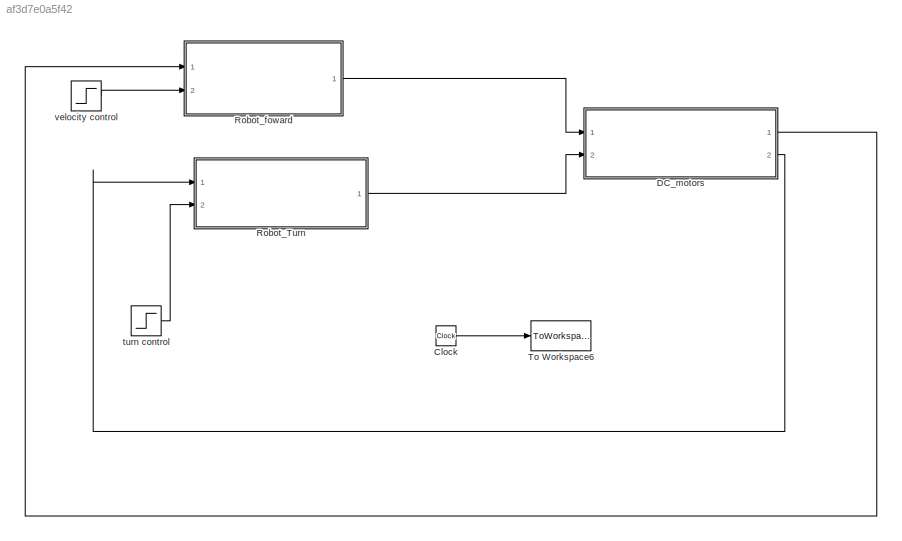
MODEL slx_af3d7e0a5f42
KIND model
BLOCK [Clock] Clock
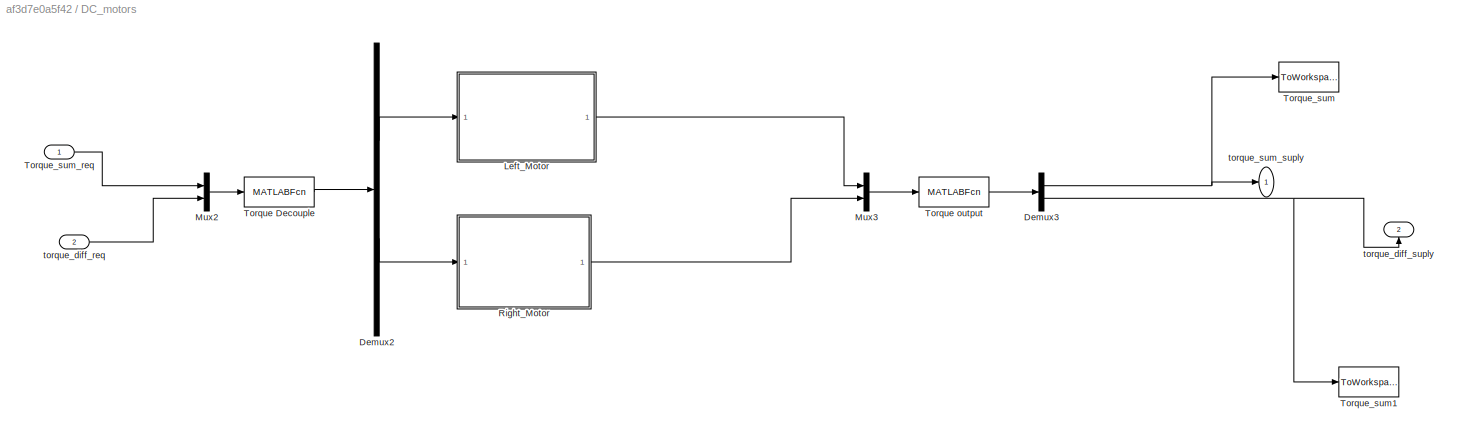
BLOCK [SubSystem] DC_motors
  Ports = [2, 2]
  RequestExecContextInheritance = off
BLOCK [Demux] DC_motors/Demux2
  DisplayOption = bar
  Outputs = 2
  Ports = [1, 2]
BLOCK [Demux] DC_motors/Demux3
  DisplayOption = bar
  Outputs = 2
  Ports = [1, 2]
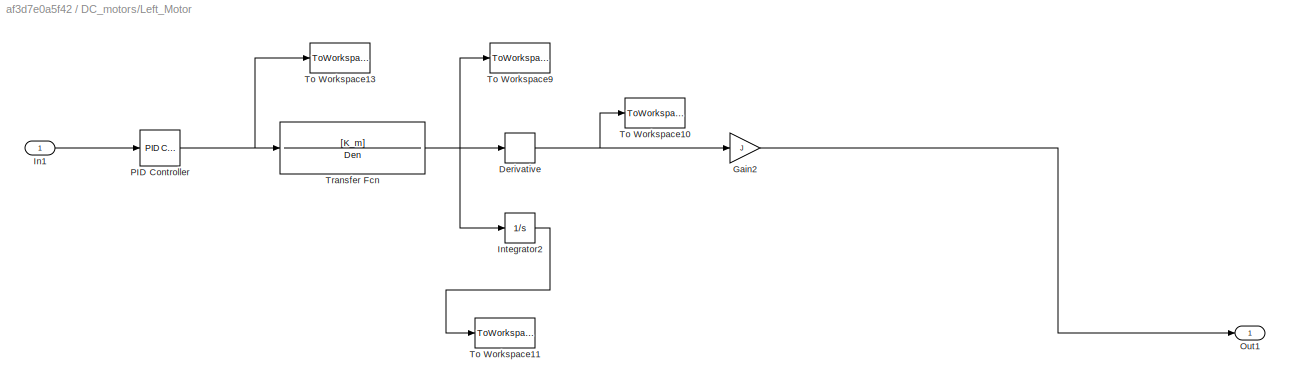
BLOCK [SubSystem] DC_motors/Left_Motor
  Ports = [1, 1]
  RequestExecContextInheritance = off
BLOCK [Derivative] DC_motors/Left_Motor/Derivative
BLOCK [Gain] DC_motors/Left_Motor/Gain2
  Gain = J
  OutDataTypeStr = Inherit: Inherit via internal rule
  ParamDataTypeStr = Inherit: Inherit via internal rule
  SaturateOnIntegerOverflow = off
BLOCK [Inport] DC_motors/Left_Motor/In1
  IconDisplay = Port number
BLOCK [Integrator] DC_motors/Left_Motor/Integrator2
  Ports = [1, 1]
BLOCK [Outport] DC_motors/Left_Motor/Out1
  IconDisplay = Port number
BLOCK [Reference] DC_motors/Left_Motor/PID Controller  REF=simulink/Continuous/PID Controller
  AntiWindupMode = none
  Controller = PID
  D = 0
  DOutDataTypeStr = Inherit: Inherit via internal rule
  DOutMax = []
  DOutMin = []
  DParamDataTypeStr = Inherit: Inherit via internal rule
  DParamMax = []
  DParamMin = []
  ExternalReset = none
  FilterContinuousStateAttributes = ''
  FilterMethod = Forward Euler
  FilterOutDataTypeStr = Inherit: Inherit via internal rule
  FilterOutMax = []
  FilterOutMin = []
  FilterRTWStateStorageClass = Auto
  FilterStateMustResolveToSignalObject = off
  Form = Parallel
  I = K_i
  IOutDataTypeStr = Inherit: Inherit via internal rule
  IOutMax = []
  IOutMin = []
  IParamDataTypeStr = Inherit: Inherit via internal rule
  IParamMax = []
  IParamMin = []
  IgnoreLimit = off
  InitialConditionForFilter = 0
  InitialConditionForIntegrator = 0
  InitialConditionSource = internal
  IntegratorContinuousStateAttributes = ''
  IntegratorMethod = Forward Euler
  IntegratorOutDataTypeStr = Inherit: Inherit via internal rule
  IntegratorOutMax = []
  IntegratorOutMin = []
  IntegratorRTWStateStorageClass = Auto
  IntegratorStateMustResolveToSignalObject = off
  Kb = 1
  KbOutDataTypeStr = Inherit: Inherit via internal rule
  KbOutMax = []
  KbOutMin = []
  KbParamDataTypeStr = Inherit: Inherit via internal rule
  KbParamMax = []
  KbParamMin = []
  Kt = 1
  KtOutDataTypeStr = Inherit: Inherit via internal rule
  KtOutMax = []
  KtOutMin = []
  KtParamDataTypeStr = Inherit: Inherit via internal rule
  KtParamMax = []
  KtParamMin = []
  LimitOutput = off
  LinearizeAsGain = on
  LockScale = off
  LowerSaturationLimit = -inf
  N = 100
  NOutDataTypeStr = Inherit: Inherit via internal rule
  NOutMax = []
  NOutMin = []
  NParamDataTypeStr = Inherit: Inherit via internal rule
  NParamMax = []
  NParamMin = []
  P = K_p
  POutDataTypeStr = Inherit: Inherit via internal rule
  POutMax = []
  POutMin = []
  PParamDataTypeStr = Inherit: Inherit via internal rule
  PParamMax = []
  PParamMin = []
  Ports = [1, 1]
  RndMeth = Floor
  SampleTime = 1
  SaturateOnIntegerOverflow = off
  SaturationOutDataTypeStr = Inherit: Same as input
  SaturationOutMax = []
  SaturationOutMin = []
  SourceBlock = simulink/Continuous/PID Controller
  SourceType = PID 1dof
  SumAccumDataTypeStr = Inherit: Inherit via internal rule
  SumDAccumDataTypeStr = Inherit: Inherit via internal rule
  SumDOutDataTypeStr = Inherit: Inherit via internal rule
  SumDOutMax = []
  SumDOutMin = []
  SumI1AccumDataTypeStr = Inherit: Inherit via internal rule
  SumI1OutDataTypeStr = Inherit: Inherit via internal rule
  SumI1OutMax = []
  SumI1OutMin = []
  SumI2AccumDataTypeStr = Inherit: Inherit via internal rule
  SumI2OutDataTypeStr = Inherit: Inherit via internal rule
  SumI2OutMax = []
  SumI2OutMin = []
  SumI3AccumDataTypeStr = Inherit: Inherit via internal rule
  SumI3OutDataTypeStr = Inherit: Inherit via internal rule
  SumI3OutMax = []
  SumI3OutMin = []
  SumOutDataTypeStr = Inherit: Inherit via internal rule
  SumOutMax = []
  SumOutMin = []
  TimeDomain = Continuous-time
  TrackingMode = off
  UpperSaturationLimit = inf
  ZeroCross = on
BLOCK [ToWorkspace] DC_motors/Left_Motor/To Workspace10
  FixptAsFi = on
  MaxDataPoints = inf
  Ports = [1]
  SampleTime = -1
  Save2DSignal = 3-D array (concatenate along third dimension)
  VariableName = w_dot_L
BLOCK [ToWorkspace] DC_motors/Left_Motor/To Workspace11
  FixptAsFi = on
  MaxDataPoints = inf
  Ports = [1]
  SampleTime = -1
  Save2DSignal = 3-D array (concatenate along third dimension)
  VariableName = theta_L
BLOCK [ToWorkspace] DC_motors/Left_Motor/To Workspace13
  FixptAsFi = on
  MaxDataPoints = inf
  Ports = [1]
  SampleTime = -1
  Save2DSignal = 3-D array (concatenate along third dimension)
  VariableName = vol_L
BLOCK [ToWorkspace] DC_motors/Left_Motor/To Workspace9
  FixptAsFi = on
  MaxDataPoints = inf
  Ports = [1]
  SampleTime = -1
  Save2DSignal = 3-D array (concatenate along third dimension)
  VariableName = w_L
BLOCK [TransferFcn] DC_motors/Left_Motor/Transfer Fcn
  Denominator = Den
  Numerator = [K_m]
BLOCK [Mux] DC_motors/Mux2
  DisplayOption = bar
  Inputs = 2
  Ports = [2, 1]
BLOCK [Mux] DC_motors/Mux3
  DisplayOption = bar
  Inputs = 2
  Ports = [2, 1]
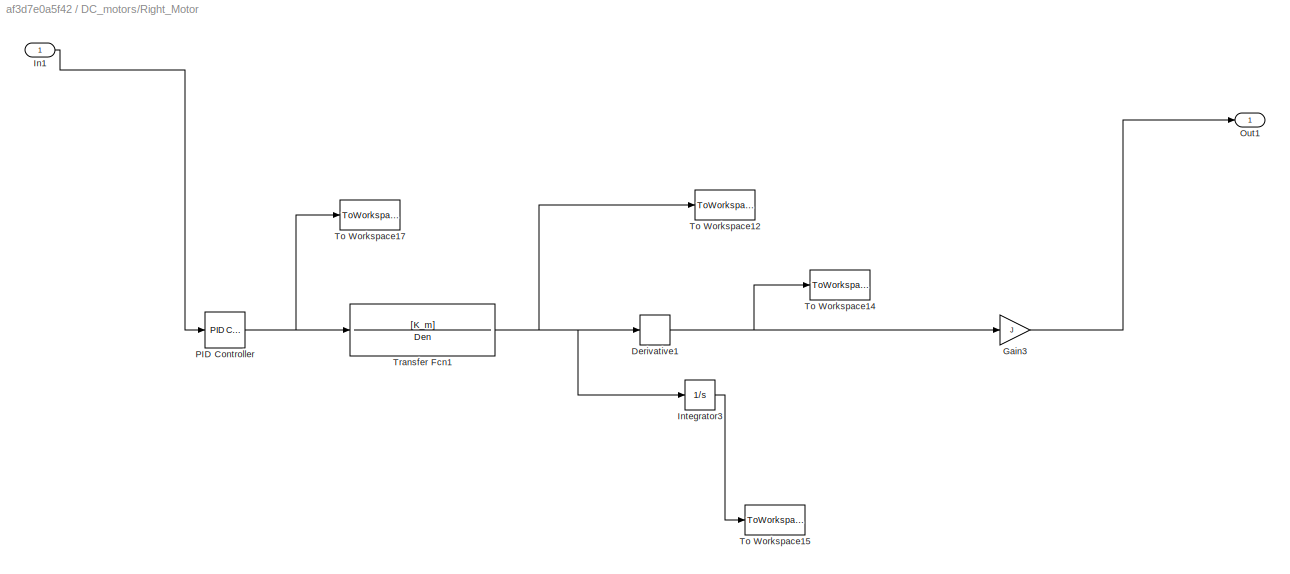
BLOCK [SubSystem] DC_motors/Right_Motor
  Ports = [1, 1]
  RequestExecContextInheritance = off
BLOCK [Derivative] DC_motors/Right_Motor/Derivative1
BLOCK [Gain] DC_motors/Right_Motor/Gain3
  Gain = J
  OutDataTypeStr = Inherit: Inherit via internal rule
  ParamDataTypeStr = Inherit: Inherit via internal rule
  SaturateOnIntegerOverflow = off
BLOCK [Inport] DC_motors/Right_Motor/In1
  IconDisplay = Port number
BLOCK [Integrator] DC_motors/Right_Motor/Integrator3
  Ports = [1, 1]
BLOCK [Outport] DC_motors/Right_Motor/Out1
  IconDisplay = Port number
BLOCK [Reference] DC_motors/Right_Motor/PID Controller  REF=simulink/Continuous/PID Controller
  AntiWindupMode = none
  Controller = PID
  D = 0
  DOutDataTypeStr = Inherit: Inherit via internal rule
  DOutMax = []
  DOutMin = []
  DParamDataTypeStr = Inherit: Inherit via internal rule
  DParamMax = []
  DParamMin = []
  ExternalReset = none
  FilterContinuousStateAttributes = ''
  FilterMethod = Forward Euler
  FilterOutDataTypeStr = Inherit: Inherit via internal rule
  FilterOutMax = []
  FilterOutMin = []
  FilterRTWStateStorageClass = Auto
  FilterStateMustResolveToSignalObject = off
  Form = Parallel
  I = K_i
  IOutDataTypeStr = Inherit: Inherit via internal rule
  IOutMax = []
  IOutMin = []
  IParamDataTypeStr = Inherit: Inherit via internal rule
  IParamMax = []
  IParamMin = []
  IgnoreLimit = off
  InitialConditionForFilter = 0
  InitialConditionForIntegrator = 0
  InitialConditionSource = internal
  IntegratorContinuousStateAttributes = ''
  IntegratorMethod = Forward Euler
  IntegratorOutDataTypeStr = Inherit: Inherit via internal rule
  IntegratorOutMax = []
  IntegratorOutMin = []
  IntegratorRTWStateStorageClass = Auto
  IntegratorStateMustResolveToSignalObject = off
  Kb = 1
  KbOutDataTypeStr = Inherit: Inherit via internal rule
  KbOutMax = []
  KbOutMin = []
  KbParamDataTypeStr = Inherit: Inherit via internal rule
  KbParamMax = []
  KbParamMin = []
  Kt = 1
  KtOutDataTypeStr = Inherit: Inherit via internal rule
  KtOutMax = []
  KtOutMin = []
  KtParamDataTypeStr = Inherit: Inherit via internal rule
  KtParamMax = []
  KtParamMin = []
  LimitOutput = off
  LinearizeAsGain = on
  LockScale = off
  LowerSaturationLimit = -inf
  N = 100
  NOutDataTypeStr = Inherit: Inherit via internal rule
  NOutMax = []
  NOutMin = []
  NParamDataTypeStr = Inherit: Inherit via internal rule
  NParamMax = []
  NParamMin = []
  P = K_p
  POutDataTypeStr = Inherit: Inherit via internal rule
  POutMax = []
  POutMin = []
  PParamDataTypeStr = Inherit: Inherit via internal rule
  PParamMax = []
  PParamMin = []
  Ports = [1, 1]
  RndMeth = Floor
  SampleTime = 1
  SaturateOnIntegerOverflow = off
  SaturationOutDataTypeStr = Inherit: Same as input
  SaturationOutMax = []
  SaturationOutMin = []
  SourceBlock = simulink/Continuous/PID Controller
  SourceType = PID 1dof
  SumAccumDataTypeStr = Inherit: Inherit via internal rule
  SumDAccumDataTypeStr = Inherit: Inherit via internal rule
  SumDOutDataTypeStr = Inherit: Inherit via internal rule
  SumDOutMax = []
  SumDOutMin = []
  SumI1AccumDataTypeStr = Inherit: Inherit via internal rule
  SumI1OutDataTypeStr = Inherit: Inherit via internal rule
  SumI1OutMax = []
  SumI1OutMin = []
  SumI2AccumDataTypeStr = Inherit: Inherit via internal rule
  SumI2OutDataTypeStr = Inherit: Inherit via internal rule
  SumI2OutMax = []
  SumI2OutMin = []
  SumI3AccumDataTypeStr = Inherit: Inherit via internal rule
  SumI3OutDataTypeStr = Inherit: Inherit via internal rule
  SumI3OutMax = []
  SumI3OutMin = []
  SumOutDataTypeStr = Inherit: Inherit via internal rule
  SumOutMax = []
  SumOutMin = []
  TimeDomain = Continuous-time
  TrackingMode = off
  UpperSaturationLimit = inf
  ZeroCross = on
BLOCK [ToWorkspace] DC_motors/Right_Motor/To Workspace12
  FixptAsFi = on
  MaxDataPoints = inf
  Ports = [1]
  SampleTime = -1
  Save2DSignal = 3-D array (concatenate along third dimension)
  VariableName = w_R
BLOCK [ToWorkspace] DC_motors/Right_Motor/To Workspace14
  FixptAsFi = on
  MaxDataPoints = inf
  Ports = [1]
  SampleTime = -1
  Save2DSignal = 3-D array (concatenate along third dimension)
  VariableName = w_dot_R
BLOCK [ToWorkspace] DC_motors/Right_Motor/To Workspace15
  FixptAsFi = on
  MaxDataPoints = inf
  Ports = [1]
  SampleTime = -1
  Save2DSignal = 3-D array (concatenate along third dimension)
  VariableName = theta_R
BLOCK [ToWorkspace] DC_motors/Right_Motor/To Workspace17
  FixptAsFi = on
  MaxDataPoints = inf
  Ports = [1]
  SampleTime = -1
  Save2DSignal = 3-D array (concatenate along third dimension)
  VariableName = vol_R
BLOCK [TransferFcn] DC_motors/Right_Motor/Transfer Fcn1
  Denominator = Den
  Numerator = [K_m]
BLOCK [MATLABFcn] DC_motors/Torque Decouple
  MATLABFcn = torque_decouple
  OutputDimensions = 2
  Ports = [1, 1]
BLOCK [MATLABFcn] DC_motors/Torque output
  MATLABFcn = torque_sum
  OutputDimensions = 2
  Ports = [1, 1]
BLOCK [ToWorkspace] DC_motors/Torque_sum
  FixptAsFi = on
  MaxDataPoints = inf
  Ports = [1]
  SampleTime = -1
  Save2DSignal = 3-D array (concatenate along third dimension)
  VariableName = u1
BLOCK [ToWorkspace] DC_motors/Torque_sum1
  FixptAsFi = on
  MaxDataPoints = inf
  Ports = [1]
  SampleTime = -1
  Save2DSignal = 3-D array (concatenate along third dimension)
  VariableName = u2
BLOCK [Inport] DC_motors/Torque_sum_req
  IconDisplay = Port number
BLOCK [Inport] DC_motors/torque_diff_req
  IconDisplay = Port number
  Port = 2
BLOCK [Outport] DC_motors/torque_diff_suply
  IconDisplay = Port number
  Port = 2
BLOCK [Outport] DC_motors/torque_sum_suply
  IconDisplay = Port number
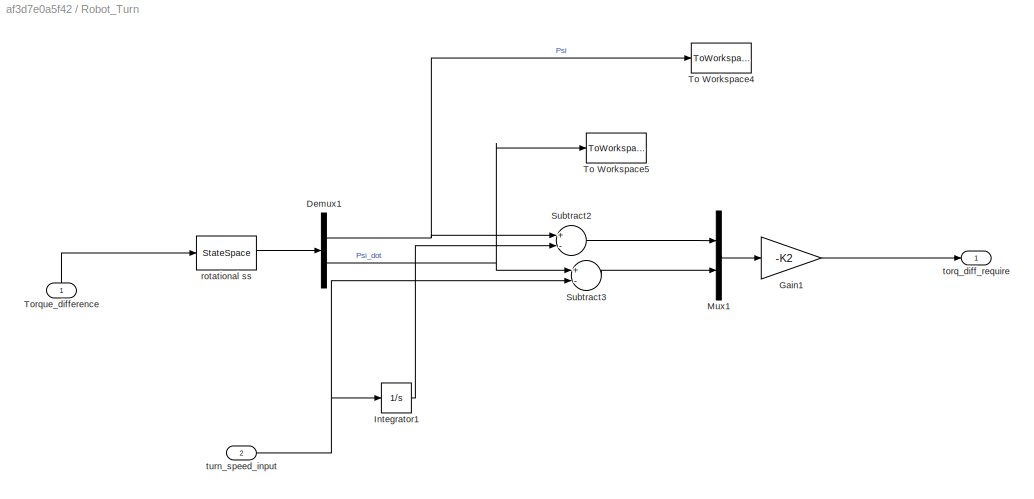
BLOCK [SubSystem] Robot_Turn
  Ports = [2, 1]
  RequestExecContextInheritance = off
BLOCK [Demux] Robot_Turn/Demux1
  DisplayOption = bar
  Outputs = 2
  Ports = [1, 2]
BLOCK [Gain] Robot_Turn/Gain1
  Gain = -K2
  Multiplication = Matrix(K*u)
  OutDataTypeStr = Inherit: Inherit via internal rule
  ParamDataTypeStr = Inherit: Inherit via internal rule
  SaturateOnIntegerOverflow = off
BLOCK [Integrator] Robot_Turn/Integrator1
  Ports = [1, 1]
BLOCK [Mux] Robot_Turn/Mux1
  DisplayOption = bar
  Inputs = 2
  Ports = [2, 1]
BLOCK [Sum] Robot_Turn/Subtract2
  InputSameDT = off
  Inputs = +-
  OutDataTypeStr = Inherit: Inherit via internal rule
  Ports = [2, 1]
  SaturateOnIntegerOverflow = off
BLOCK [Sum] Robot_Turn/Subtract3
  InputSameDT = off
  Inputs = +-
  OutDataTypeStr = Inherit: Inherit via internal rule
  Ports = [2, 1]
  SaturateOnIntegerOverflow = off
BLOCK [ToWorkspace] Robot_Turn/To Workspace4
  FixptAsFi = on
  MaxDataPoints = inf
  Ports = [1]
  SampleTime = -1
  Save2DSignal = 3-D array (concatenate along third dimension)
  VariableName = Psi
BLOCK [ToWorkspace] Robot_Turn/To Workspace5
  FixptAsFi = on
  MaxDataPoints = inf
  Ports = [1]
  SampleTime = -1
  Save2DSignal = 3-D array (concatenate along third dimension)
  VariableName = Psi_dot
BLOCK [Inport] Robot_Turn/Torque_difference
  IconDisplay = Port number
BLOCK [StateSpace] Robot_Turn/rotational ss
  A = A_r
  B = B_r
  C = C_r
  D = D_r
  Ports = [1, 1]
  X0 = 0
BLOCK [Outport] Robot_Turn/torq_diff_require
  IconDisplay = Port number
BLOCK [Inport] Robot_Turn/turn_speed_input
  IconDisplay = Port number
  Port = 2
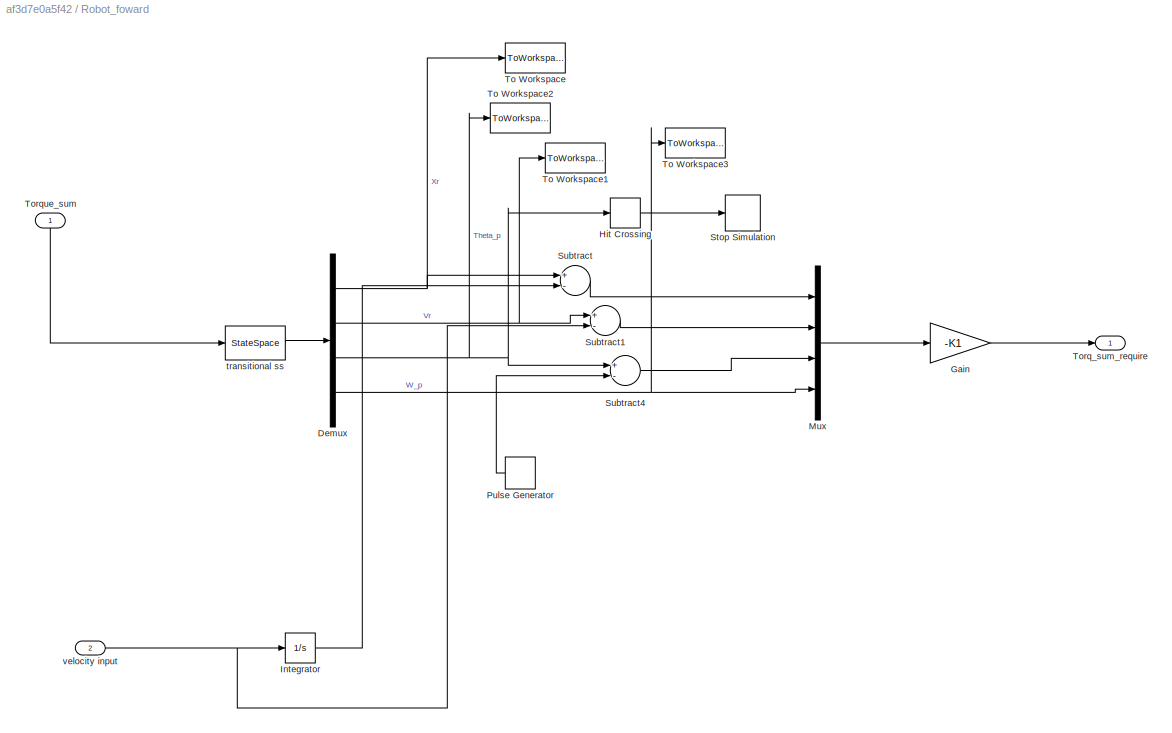
BLOCK [SubSystem] Robot_foward
  Ports = [2, 1]
  RequestExecContextInheritance = off
BLOCK [Demux] Robot_foward/Demux
  DisplayOption = bar
  Ports = [1, 4]
BLOCK [Gain] Robot_foward/Gain
  Gain = -K1
  Multiplication = Matrix(K*u)
  OutDataTypeStr = Inherit: Inherit via internal rule
  ParamDataTypeStr = Inherit: Inherit via internal rule
  SaturateOnIntegerOverflow = off
BLOCK [HitCross] Robot_foward/Hit Crossing
  HitCrossingOffset = -pi/2
  Ports = [1, 1]
BLOCK [Integrator] Robot_foward/Integrator
  Ports = [1, 1]
BLOCK [Mux] Robot_foward/Mux
  DisplayOption = bar
  Ports = [4, 1]
BLOCK [DiscretePulseGenerator] Robot_foward/Pulse Generator
  Amplitude = Theta_d
  Period = 10
  Ports = [0, 1]
  PulseType = Time based
BLOCK [Stop] Robot_foward/Stop Simulation
BLOCK [Sum] Robot_foward/Subtract
  InputSameDT = off
  Inputs = +-
  OutDataTypeStr = Inherit: Inherit via internal rule
  Ports = [2, 1]
  SaturateOnIntegerOverflow = off
BLOCK [Sum] Robot_foward/Subtract1
  InputSameDT = off
  Inputs = +-
  OutDataTypeStr = Inherit: Inherit via internal rule
  Ports = [2, 1]
  SaturateOnIntegerOverflow = off
BLOCK [Sum] Robot_foward/Subtract4
  InputSameDT = off
  Inputs = +-
  OutDataTypeStr = Inherit: Inherit via internal rule
  Ports = [2, 1]
  SaturateOnIntegerOverflow = off
BLOCK [ToWorkspace] Robot_foward/To Workspace
  FixptAsFi = on
  MaxDataPoints = inf
  Ports = [1]
  SampleTime = -1
  Save2DSignal = 3-D array (concatenate along third dimension)
  VariableName = Xr
BLOCK [ToWorkspace] Robot_foward/To Workspace1
  FixptAsFi = on
  MaxDataPoints = inf
  Ports = [1]
  SampleTime = -1
  Save2DSignal = 3-D array (concatenate along third dimension)
  VariableName = Vr
BLOCK [ToWorkspace] Robot_foward/To Workspace2
  FixptAsFi = on
  MaxDataPoints = inf
  Ports = [1]
  SampleTime = -1
  Save2DSignal = 3-D array (concatenate along third dimension)
  VariableName = Theta_p
BLOCK [ToWorkspace] Robot_foward/To Workspace3
  FixptAsFi = on
  MaxDataPoints = inf
  Ports = [1]
  SampleTime = -1
  Save2DSignal = 3-D array (concatenate along third dimension)
  VariableName = W_p
BLOCK [Outport] Robot_foward/Torq_sum_require
  IconDisplay = Port number
BLOCK [Inport] Robot_foward/Torque_sum
  IconDisplay = Port number
BLOCK [StateSpace] Robot_foward/transitional ss
  A = A_t
  B = B_t
  C = C_t
  D = D_t
  Ports = [1, 1]
  X0 = 0
BLOCK [Inport] Robot_foward/velocity input
  IconDisplay = Port number
  Port = 2
BLOCK [ToWorkspace] To Workspace6
  FixptAsFi = on
  MaxDataPoints = inf
  Ports = [1]
  SampleTime = -1
  Save2DSignal = 3-D array (concatenate along third dimension)
  VariableName = t
BLOCK [Step] turn control
  After = Psi_dot_in
  SampleTime = 0
BLOCK [Step] velocity control
  After = V_in
  SampleTime = 0
LINE Clock:1 -> To Workspace6:1
LINE DC_motors/Demux2:1 -> DC_motors/Left_Motor:1
LINE DC_motors/Demux2:2 -> DC_motors/Right_Motor:1
NET DC_motors/Demux3:1 -> DC_motors/Torque_sum:1, DC_motors/torque_sum_suply:1
NET DC_motors/Demux3:2 -> DC_motors/Torque_sum1:1, DC_motors/torque_diff_suply:1
NET DC_motors/Left_Motor/Derivative:1 -> DC_motors/Left_Motor/Gain2:1, DC_motors/Left_Motor/To Workspace10:1
LINE DC_motors/Left_Motor/Gain2:1 -> DC_motors/Left_Motor/Out1:1
LINE DC_motors/Left_Motor/In1:1 -> DC_motors/Left_Motor/PID Controller:1
LINE DC_motors/Left_Motor/Integrator2:1 -> DC_motors/Left_Motor/To Workspace11:1
NET DC_motors/Left_Motor/PID Controller:1 -> DC_motors/Left_Motor/To Workspace13:1, DC_motors/Left_Motor/Transfer Fcn:1
NET DC_motors/Left_Motor/Transfer Fcn:1 -> DC_motors/Left_Motor/Derivative:1, DC_motors/Left_Motor/Integrator2:1, DC_motors/Left_Motor/To Workspace9:1
LINE DC_motors/Left_Motor:1 -> DC_motors/Mux3:1
LINE DC_motors/Mux2:1 -> DC_motors/Torque Decouple:1
LINE DC_motors/Mux3:1 -> DC_motors/Torque output:1
NET DC_motors/Right_Motor/Derivative1:1 -> DC_motors/Right_Motor/Gain3:1, DC_motors/Right_Motor/To Workspace14:1
LINE DC_motors/Right_Motor/Gain3:1 -> DC_motors/Right_Motor/Out1:1
LINE DC_motors/Right_Motor/In1:1 -> DC_motors/Right_Motor/PID Controller:1
LINE DC_motors/Right_Motor/Integrator3:1 -> DC_motors/Right_Motor/To Workspace15:1
NET DC_motors/Right_Motor/PID Controller:1 -> DC_motors/Right_Motor/To Workspace17:1, DC_motors/Right_Motor/Transfer Fcn1:1
NET DC_motors/Right_Motor/Transfer Fcn1:1 -> DC_motors/Right_Motor/Derivative1:1, DC_motors/Right_Motor/Integrator3:1, DC_motors/Right_Motor/To Workspace12:1
LINE DC_motors/Right_Motor:1 -> DC_motors/Mux3:2
LINE DC_motors/Torque Decouple:1 -> DC_motors/Demux2:1
LINE DC_motors/Torque output:1 -> DC_motors/Demux3:1
LINE DC_motors/Torque_sum_req:1 -> DC_motors/Mux2:1
LINE DC_motors/torque_diff_req:1 -> DC_motors/Mux2:2
LINE DC_motors:1 -> Robot_foward:1
LINE DC_motors:2 -> Robot_Turn:1
NET Robot_Turn/Demux1:1 -> Robot_Turn/Subtract2:1, Robot_Turn/To Workspace4:1
NET Robot_Turn/Demux1:2 -> Robot_Turn/Subtract3:1, Robot_Turn/To Workspace5:1
LINE Robot_Turn/Gain1:1 -> Robot_Turn/torq_diff_require:1
LINE Robot_Turn/Integrator1:1 -> Robot_Turn/Subtract2:2
LINE Robot_Turn/Mux1:1 -> Robot_Turn/Gain1:1
LINE Robot_Turn/Subtract2:1 -> Robot_Turn/Mux1:1
LINE Robot_Turn/Subtract3:1 -> Robot_Turn/Mux1:2
LINE Robot_Turn/Torque_difference:1 -> Robot_Turn/rotational ss:1
LINE Robot_Turn/rotational ss:1 -> Robot_Turn/Demux1:1
NET Robot_Turn/turn_speed_input:1 -> Robot_Turn/Integrator1:1, Robot_Turn/Subtract3:2
LINE Robot_Turn:1 -> DC_motors:2
NET Robot_foward/Demux:1 -> Robot_foward/Subtract:1, Robot_foward/To Workspace:1
NET Robot_foward/Demux:2 -> Robot_foward/Subtract1:1, Robot_foward/To Workspace1:1
NET Robot_foward/Demux:3 -> Robot_foward/Hit Crossing:1, Robot_foward/Subtract4:1, Robot_foward/To Workspace2:1
NET Robot_foward/Demux:4 -> Robot_foward/Mux:4, Robot_foward/To Workspace3:1
LINE Robot_foward/Gain:1 -> Robot_foward/Torq_sum_require:1
LINE Robot_foward/Hit Crossing:1 -> Robot_foward/Stop Simulation:1
LINE Robot_foward/Integrator:1 -> Robot_foward/Subtract:2
LINE Robot_foward/Mux:1 -> Robot_foward/Gain:1
LINE Robot_foward/Pulse Generator:1 -> Robot_foward/Subtract4:2
LINE Robot_foward/Subtract1:1 -> Robot_foward/Mux:2
LINE Robot_foward/Subtract4:1 -> Robot_foward/Mux:3
LINE Robot_foward/Subtract:1 -> Robot_foward/Mux:1
LINE Robot_foward/Torque_sum:1 -> Robot_foward/transitional ss:1
LINE Robot_foward/transitional ss:1 -> Robot_foward/Demux:1
NET Robot_foward/velocity input:1 -> Robot_foward/Integrator:1, Robot_foward/Subtract1:2
LINE Robot_foward:1 -> DC_motors:1
LINE turn control:1 -> Robot_Turn:2
LINE velocity control:1 -> Robot_foward:2
note: NET lines group one-source signal fan-out (src -> all destinations, sorted); 1:1 wires keep LINE
